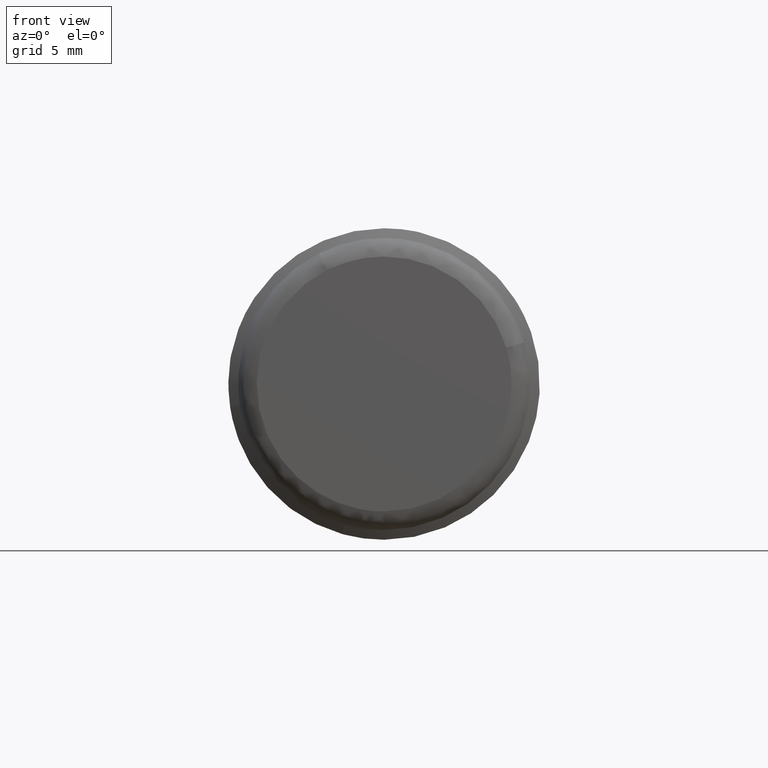
[diagram: clean part render]
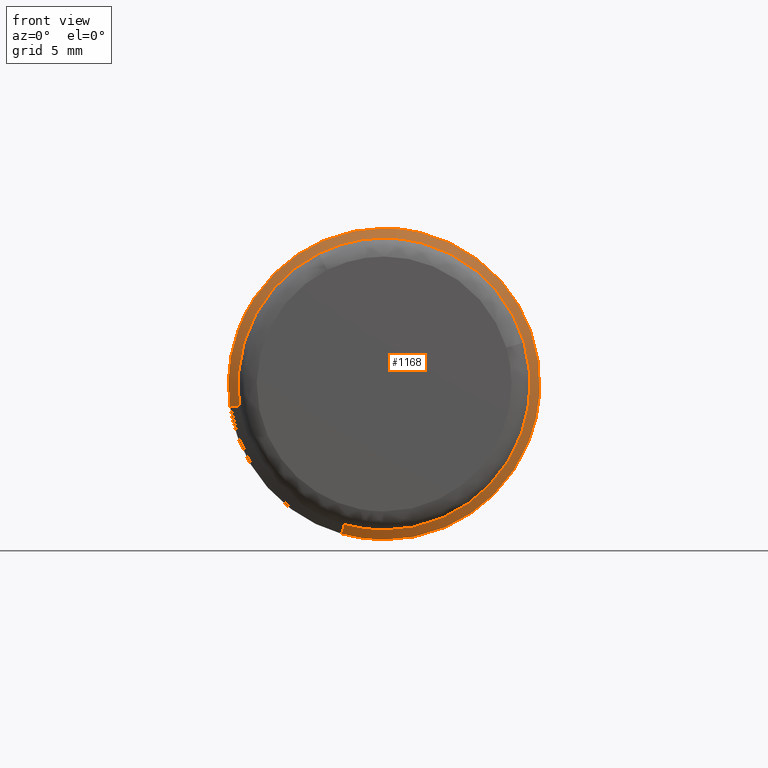
[diagram: same view with one face highlighted and labeled with its STEP entity id]
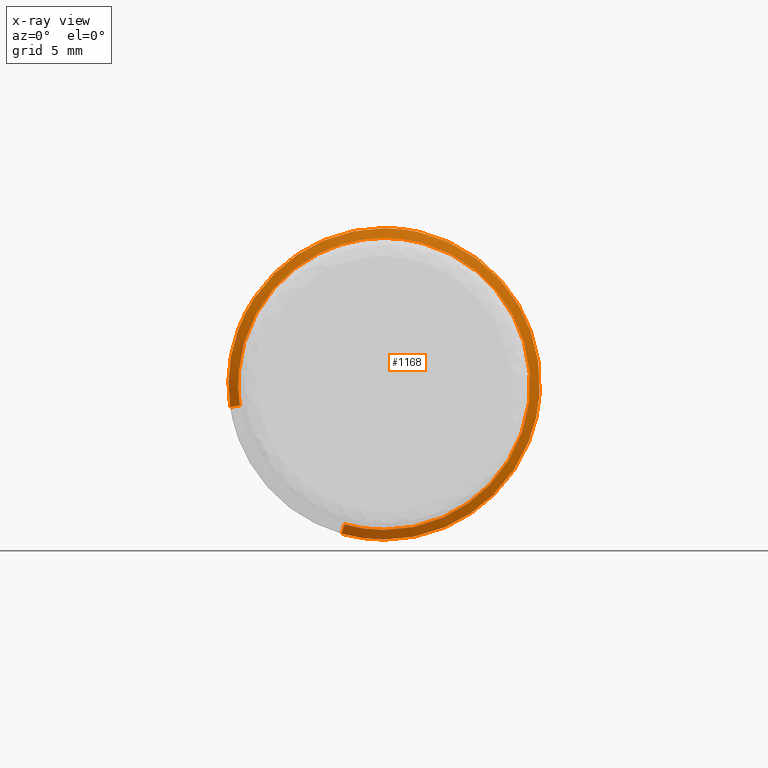
[diagram: x-ray of the same camera — body ghosted, the highlighted face saturated]
A machine part, front view. The second image highlights one B-rep face of the part: STEP entity #1168.
The next image is the same camera in x-ray: the body ghosted, the highlighted face saturated — about 0% of this face is hidden behind the body in this view.
In plain terms, the highlighted face is a freeform B-spline surface patch.
Its self-contained STEP definition (entity closure, byte-faithful):
#937=CARTESIAN_POINT('',(-8.999999999996062,7.912126906894615,-1.182475289086098));
#938=VERTEX_POINT('',#937);
#939=CARTESIAN_POINT('',(-8.999999999999893,2.183880291809003,-7.696146235035498));
#940=VERTEX_POINT('',#939);
#954=CARTESIAN_POINT('',(-9.300044964199213,2.047367316001331,-7.215065001370784));
#955=VERTEX_POINT('',#954);
#956=CARTESIAN_POINT('',(-9.300044964199213,2.047367316001331,-7.215065001370784));
#957=CARTESIAN_POINT('',(-8.999999999999893,2.183880291809003,-7.696146235035498));
#958=QUASI_UNIFORM_CURVE('',1,(#956,#957),.UNSPECIFIED.,.F.,.U.);
#959=EDGE_CURVE('',#955,#940,#958,.T.);
#961=CARTESIAN_POINT('',(-9.300044964196690,7.417544858034038,-1.108559506635495));
#962=VERTEX_POINT('',#961);
#976=CARTESIAN_POINT('',(-9.300044964196690,7.417544858034038,-1.108559506635495));
#977=CARTESIAN_POINT('',(-8.999999999996062,7.912126906894615,-1.182475289086098));
#978=QUASI_UNIFORM_CURVE('',1,(#976,#977),.UNSPECIFIED.,.F.,.U.);
#979=EDGE_CURVE('',#962,#938,#978,.T.);
#984=CARTESIAN_POINT('',(-9.307546100482423,7.405180286741659,-1.106711609024363));
#985=CARTESIAN_POINT('',(-9.307546100482423,8.511891895766022,6.298468677717295));
#986=CARTESIAN_POINT('',(-9.307546100482423,1.106711609024363,7.405180286741659));
#987=CARTESIAN_POINT('',(-9.307546100482423,-6.298468677717295,8.511891895766022));
#988=CARTESIAN_POINT('',(-9.307546100482423,-7.405180286741659,1.106711609024363));
#989=CARTESIAN_POINT('',(-9.307546100482423,-8.511891895766022,-6.298468677717295));
#990=CARTESIAN_POINT('',(-9.307546100482423,-1.106711609024363,-7.405180286741659));
#991=CARTESIAN_POINT('',(-9.307546100482423,0.490420229888788,-7.643873239353802));
#992=CARTESIAN_POINT('',(-9.307546100482425,2.043954486043735,-7.203037951009161));
#993=CARTESIAN_POINT('',(-8.992311347487938,7.924800572399177,-1.184369381037199));
#994=CARTESIAN_POINT('',(-8.992311347487938,9.109169953436375,6.740431191361980));
#995=CARTESIAN_POINT('',(-8.992311347487938,1.184369381037199,7.924800572399177));
#996=CARTESIAN_POINT('',(-8.992311347487938,-6.740431191361980,9.109169953436375));
#997=CARTESIAN_POINT('',(-8.992311347487938,-7.924800572399177,1.184369381037199));
#998=CARTESIAN_POINT('',(-8.992311347487938,-9.109169953436375,-6.740431191361980));
#999=CARTESIAN_POINT('',(-8.992311347487938,-1.184369381037199,-7.924800572399177));
#1000=CARTESIAN_POINT('',(-8.992311347487936,0.524832936950531,-8.180242570330695));
#1001=CARTESIAN_POINT('',(-8.992311347487938,2.187378436951529,-7.708473942136423));
#1009=(BOUNDED_SURFACE()B_SPLINE_SURFACE(2,1,((#984,#993),(#985,#994),(#986,#995),(#987,#996),(#988,#997),(#989,#998),(#990,#999),(#991,#1000),(#992,#1001)),.UNSPECIFIED.,.F.,.F.,.U.)B_SPLINE_SURFACE_WITH_KNOTS((3,2,2,2,3),(2,2),(0.0,13.276065623584840,26.552131247169680,39.828196870754518,43.545495245358261),(0.0,1.0),.UNSPECIFIED.)GEOMETRIC_REPRESENTATION_ITEM()RATIONAL_B_SPLINE_SURFACE(((1.0,1.0),(0.707106781186548,0.707106781186548),(1.0,1.0),(0.707106781186548,0.707106781186548),(1.0,1.0),(0.707106781186548,0.707106781186548),(1.0,1.0),(0.917989898732233,0.917989898732233),(0.881905454174416,0.881905454174416)))REPRESENTATION_ITEM('')SURFACE());
#1010=CARTESIAN_POINT('',(-9.0,0.0,-8.0));
#1011=VERTEX_POINT('',#1010);
#1012=CARTESIAN_POINT('',(-8.999999999999893,2.183880291809003,-7.696146235035498));
#1013=CARTESIAN_POINT('',(-9.0,1.113078463520376,-8.0));
#1014=CARTESIAN_POINT('',(-9.0,0.0,-8.0));
#1022=(BOUNDED_CURVE()B_SPLINE_CURVE(2,(#1012,#1013,#1014),.UNSPECIFIED.,.F.,.U.)B_SPLINE_CURVE_WITH_KNOTS((3,3),(0.453488921273909,0.500000000000000),.UNSPECIFIED.)CURVE()GEOMETRIC_REPRESENTATION_ITEM()RATIONAL_B_SPLINE_CURVE((0.911293289051974,0.945508881765717,1.0))REPRESENTATION_ITEM(''));
#1023=EDGE_CURVE('',#940,#1011,#1022,.T.);
#1024=ORIENTED_EDGE('',*,*,#1023,.T.);
#1025=CARTESIAN_POINT('',(-9.000000000000002,-7.985078533772769,-0.488385922683649));
#1026=VERTEX_POINT('',#1025);
#1027=CARTESIAN_POINT('',(-9.0,0.0,-8.0));
#1028=CARTESIAN_POINT('',(-9.0,-7.525650795338561,-8.0));
#1029=CARTESIAN_POINT('',(-9.000000000000002,-7.985078533772769,-0.488385922683649));
#1037=(BOUNDED_CURVE()B_SPLINE_CURVE(2,(#1027,#1028,#1029),.UNSPECIFIED.,.F.,.U.)B_SPLINE_CURVE_WITH_KNOTS((3,3),(0.500000000000000,0.739333013964339),.UNSPECIFIED.)CURVE()GEOMETRIC_REPRESENTATION_ITEM()RATIONAL_B_SPLINE_CURVE((1.0,0.719603932686639,0.976072152524113))REPRESENTATION_ITEM(''));
#1038=EDGE_CURVE('',#1011,#1026,#1037,.T.);
#1039=ORIENTED_EDGE('',*,*,#1038,.T.);
#1040=CARTESIAN_POINT('',(-9.0,0.0,8.0));
#1041=VERTEX_POINT('',#1040);
#1042=CARTESIAN_POINT('',(-9.000000000000002,-7.985078533772769,-0.488385922683649));
#1043=CARTESIAN_POINT('',(-9.000000000000002,-8.000000000000002,-0.244420906235432));
#1044=CARTESIAN_POINT('',(-9.0,-8.0,0.0));
#1045=CARTESIAN_POINT('',(-9.000000000000002,-8.0,8.0));
#1046=CARTESIAN_POINT('',(-9.0,0.0,8.0));
#1054=(BOUNDED_CURVE()B_SPLINE_CURVE(2,(#1042,#1043,#1044,#1045,#1046),.UNSPECIFIED.,.F.,.U.)B_SPLINE_CURVE_WITH_KNOTS((3,2,3),(0.739333013964339,0.750000000000000,1.0),.UNSPECIFIED.)CURVE()GEOMETRIC_REPRESENTATION_ITEM()RATIONAL_B_SPLINE_CURVE((0.976072152524113,0.987502848499908,1.0,0.707106781186548,1.0))REPRESENTATION_ITEM(''));
#1055=EDGE_CURVE('',#1026,#1041,#1054,.T.);
#1056=ORIENTED_EDGE('',*,*,#1055,.T.);
#1057=CARTESIAN_POINT('',(-9.0,7.489148753605893,2.812943466613426));
#1058=VERTEX_POINT('',#1057);
#1059=CARTESIAN_POINT('',(-9.0,0.0,8.0));
#1060=CARTESIAN_POINT('',(-9.0,5.540877284826602,8.0));
#1061=CARTESIAN_POINT('',(-9.0,7.489148753605893,2.812943466613426));
#1069=(BOUNDED_CURVE()B_SPLINE_CURVE(2,(#1059,#1060,#1061),.UNSPECIFIED.,.F.,.U.)B_SPLINE_CURVE_WITH_KNOTS((3,3),(0.0,0.190284184756177),.UNSPECIFIED.)CURVE()GEOMETRIC_REPRESENTATION_ITEM()RATIONAL_B_SPLINE_CURVE((1.0,0.777068210549879,0.893499571593773))REPRESENTATION_ITEM(''));
#1070=EDGE_CURVE('',#1041,#1058,#1069,.T.);
#1071=ORIENTED_EDGE('',*,*,#1070,.T.);
#1072=CARTESIAN_POINT('',(-9.0,7.489148753605893,2.812943466613426));
#1073=CARTESIAN_POINT('',(-9.0,8.0,1.452858726031879));
#1074=CARTESIAN_POINT('',(-9.0,8.0,0.0));
#1075=CARTESIAN_POINT('',(-9.000000000000002,8.0,-0.594502693978404));
#1076=CARTESIAN_POINT('',(-8.999999999996062,7.912126906894615,-1.182475289086099));
#1084=(BOUNDED_CURVE()B_SPLINE_CURVE(2,(#1072,#1073,#1074,#1075,#1076),.UNSPECIFIED.,.F.,.U.)B_SPLINE_CURVE_WITH_KNOTS((3,2,3),(0.190284184756177,0.250000000000000,0.275488969613778),.UNSPECIFIED.)CURVE()GEOMETRIC_REPRESENTATION_ITEM()RATIONAL_B_SPLINE_CURVE((0.893499571593773,0.930038570636668,1.0,0.970137814582330,0.946364879858355))REPRESENTATION_ITEM(''));
#1085=EDGE_CURVE('',#1058,#938,#1084,.T.);
#1086=ORIENTED_EDGE('',*,*,#1085,.T.);
#1087=ORIENTED_EDGE('',*,*,#979,.F.);
#1088=CARTESIAN_POINT('',(-9.300044976080413,3.359535434001402,6.705400622799411));
#1089=VERTEX_POINT('',#1088);
#1090=CARTESIAN_POINT('',(-9.300044976080413,3.359535434001403,6.705400622799410));
#1091=CARTESIAN_POINT('',(-9.300044964200732,7.499925059665480,4.630985325003866));
#1092=CARTESIAN_POINT('',(-9.300044964200730,7.499925059665480,0.0));
#1093=CARTESIAN_POINT('',(-9.300044964200730,7.499925059665480,-0.557340706579882));
#1094=CARTESIAN_POINT('',(-9.300044964196690,7.417544858034039,-1.108559506635494));
#1102=(BOUNDED_CURVE()B_SPLINE_CURVE(2,(#1090,#1091,#1092,#1093,#1094),.UNSPECIFIED.,.F.,.U.)B_SPLINE_CURVE_WITH_KNOTS((3,2,3),(0.076154610383481,0.250000000000000,0.275488969613954),.UNSPECIFIED.)CURVE()GEOMETRIC_REPRESENTATION_ITEM()RATIONAL_B_SPLINE_CURVE((0.875915174758937,0.796327457037356,1.0,0.970137814582123,0.946364879858027))REPRESENTATION_ITEM(''));
#1103=EDGE_CURVE('',#1089,#962,#1102,.T.);
#1104=ORIENTED_EDGE('',*,*,#1103,.F.);
#1105=CARTESIAN_POINT('',(-9.300044964200730,0.0,7.499925059665480));
#1106=VERTEX_POINT('',#1105);
#1107=CARTESIAN_POINT('',(-9.300044964200730,0.0,7.499925059665480));
#1108=CARTESIAN_POINT('',(-9.300044964200730,1.773719558414260,7.499925059665481));
#1109=CARTESIAN_POINT('',(-9.300044976080413,3.359535434001402,6.705400622799411));
#1117=(BOUNDED_CURVE()B_SPLINE_CURVE(2,(#1107,#1108,#1109),.UNSPECIFIED.,.F.,.U.)B_SPLINE_CURVE_WITH_KNOTS((3,3),(0.0,0.076154610383481),.UNSPECIFIED.)CURVE()GEOMETRIC_REPRESENTATION_ITEM()RATIONAL_B_SPLINE_CURVE((1.0,0.910779324149192,0.875915174758937))REPRESENTATION_ITEM(''));
#1118=EDGE_CURVE('',#1106,#1089,#1117,.T.);
#1119=ORIENTED_EDGE('',*,*,#1118,.F.);
#1120=CARTESIAN_POINT('',(-9.300044976079205,-7.188841582122613,2.137623107963673));
#1121=VERTEX_POINT('',#1120);
#1122=CARTESIAN_POINT('',(-9.300044976079205,-7.188841582122613,2.137623107963674));
#1123=CARTESIAN_POINT('',(-9.300044964200730,-5.594345389024462,7.499925059665480));
#1124=CARTESIAN_POINT('',(-9.300044964200730,0.0,7.499925059665480));
#1132=(BOUNDED_CURVE()B_SPLINE_CURVE(2,(#1122,#1123,#1124),.UNSPECIFIED.,.F.,.U.)B_SPLINE_CURVE_WITH_KNOTS((3,3),(0.798526662061927,1.0),.UNSPECIFIED.)CURVE()GEOMETRIC_REPRESENTATION_ITEM()RATIONAL_B_SPLINE_CURVE((0.908365862594125,0.763959302184909,1.0))REPRESENTATION_ITEM(''));
#1133=EDGE_CURVE('',#1121,#1106,#1132,.T.);
#1134=ORIENTED_EDGE('',*,*,#1133,.F.);
#1135=CARTESIAN_POINT('',(-9.300044964200730,0.0,-7.499925059665480));
#1136=VERTEX_POINT('',#1135);
#1137=CARTESIAN_POINT('',(-9.300044964200730,0.0,-7.499925059665480));
#1138=CARTESIAN_POINT('',(-9.300044964200730,-7.499925059665482,-7.499925059665482));
#1139=CARTESIAN_POINT('',(-9.300044964200730,-7.499925059665480,0.0));
#1140=CARTESIAN_POINT('',(-9.300044964200730,-7.499925059665480,1.091447192956009));
#1141=CARTESIAN_POINT('',(-9.300044976079205,-7.188841582122614,2.137623107963674));
#1149=(BOUNDED_CURVE()B_SPLINE_CURVE(2,(#1137,#1138,#1139,#1140,#1141),.UNSPECIFIED.,.F.,.U.)B_SPLINE_CURVE_WITH_KNOTS((3,2,3),(0.500000000000000,0.750000000000000,0.798526662061926),.UNSPECIFIED.)CURVE()GEOMETRIC_REPRESENTATION_ITEM()RATIONAL_B_SPLINE_CURVE((1.0,0.707106781186547,1.0,0.943147479001639,0.908365862594126))REPRESENTATION_ITEM(''));
#1150=EDGE_CURVE('',#1136,#1121,#1149,.T.);
#1151=ORIENTED_EDGE('',*,*,#1150,.F.);
#1152=CARTESIAN_POINT('',(-9.300044964199213,2.047367316001331,-7.215065001370784));
#1153=CARTESIAN_POINT('',(-9.300044964200732,1.043500632762176,-7.499925059665481));
#1154=CARTESIAN_POINT('',(-9.300044964200730,0.0,-7.499925059665480));
#1162=(BOUNDED_CURVE()B_SPLINE_CURVE(2,(#1152,#1153,#1154),.UNSPECIFIED.,.F.,.U.)B_SPLINE_CURVE_WITH_KNOTS((3,3),(0.453488921273029,0.500000000000000),.UNSPECIFIED.)CURVE()GEOMETRIC_REPRESENTATION_ITEM()RATIONAL_B_SPLINE_CURVE((0.911293289050680,0.945508881764686,1.0))REPRESENTATION_ITEM(''));
#1163=EDGE_CURVE('',#955,#1136,#1162,.T.);
#1164=ORIENTED_EDGE('',*,*,#1163,.F.);
#1165=ORIENTED_EDGE('',*,*,#959,.T.);
#1166=EDGE_LOOP('',(#1024,#1039,#1056,#1071,#1086,#1087,#1104,#1119,#1134,#1151,#1164,#1165));
#1167=FACE_OUTER_BOUND('',#1166,.T.);
#1168=ADVANCED_FACE('',(#1167),#1009,.T.);